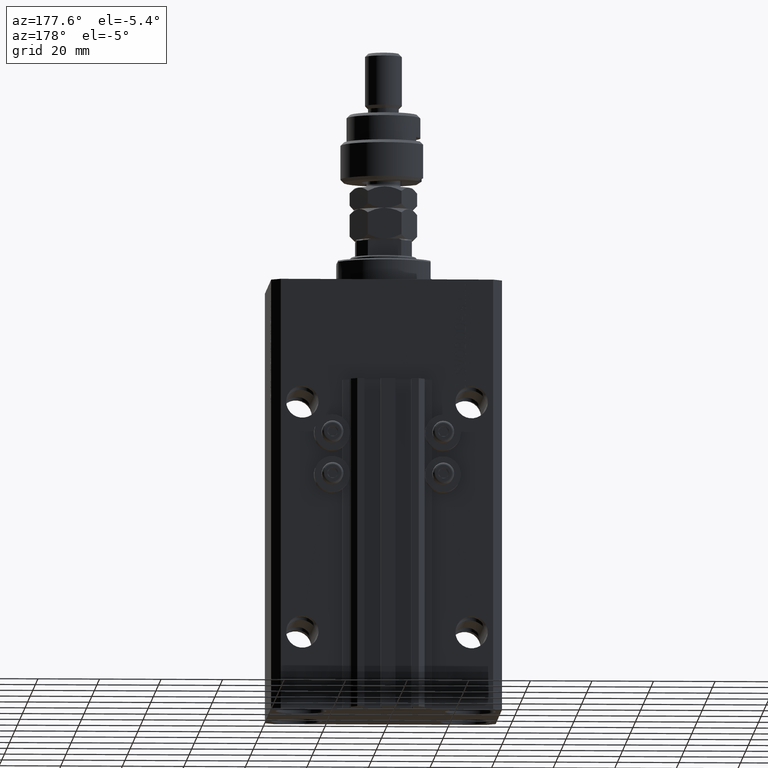
[diagram: clean part render]
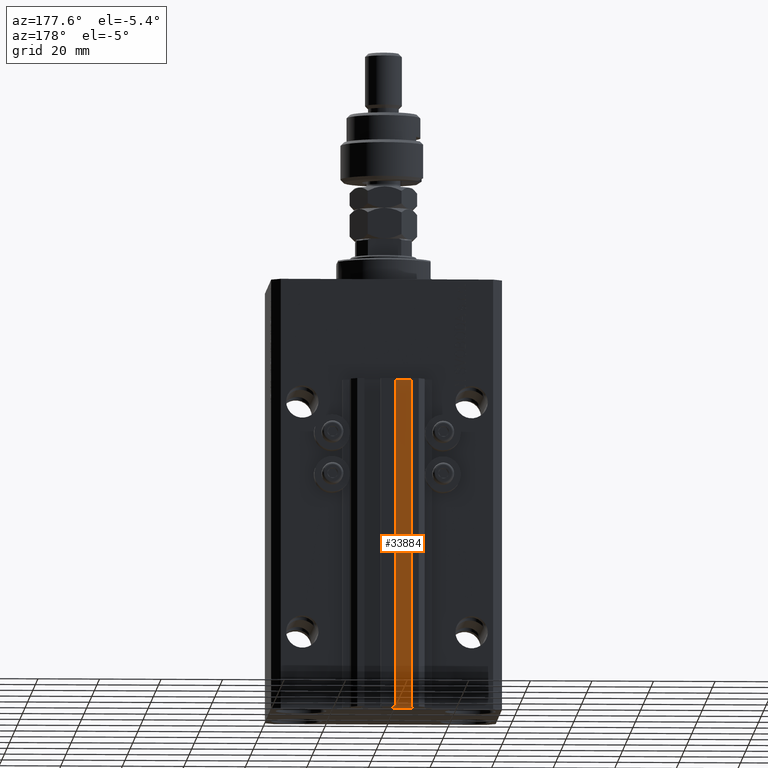
[diagram: same view with one face highlighted and labeled with its STEP entity id]
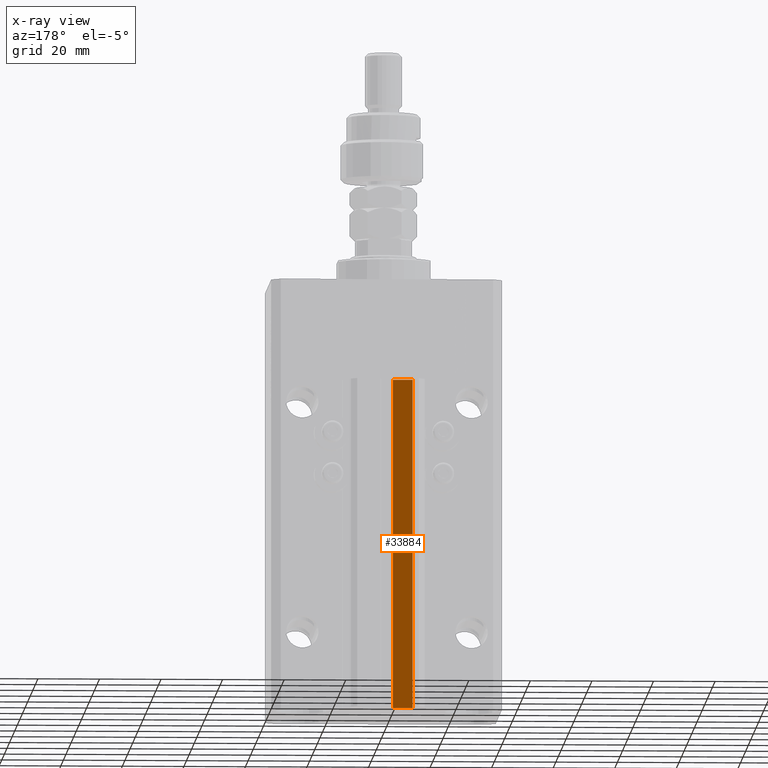
[diagram: x-ray of the same camera — body ghosted, the highlighted face saturated]
A machine part, auxiliary view. The second image highlights one B-rep face of the part: STEP entity #33884.
The next image is the same camera in x-ray: the body ghosted, the highlighted face saturated — about 0% of this face is hidden behind the body in this view.
In plain terms, the highlighted planar face has unit normal (0, 1, 0).
Its self-contained STEP definition (entity closure, byte-faithful):
#79 = CARTESIAN_POINT ( 'NONE',  ( -1.800000000000000933, 29.50000000000000355, -33.00000000000000000 ) ) ;
#200 = CARTESIAN_POINT ( 'NONE',  ( -1.800000000000000933, 29.50000000000000355, -140.0000000000000000 ) ) ;
#4311 = ORIENTED_EDGE ( 'NONE', *, *, #42371, .T. ) ;
#6063 = EDGE_LOOP ( 'NONE', ( #36895, #17052, #6708, #4311 ) ) ;
#6445 = VECTOR ( 'NONE', #31280, 1000.000000000000000 ) ;
#6708 = ORIENTED_EDGE ( 'NONE', *, *, #47461, .T. ) ;
#6722 = DIRECTION ( 'NONE',  ( -1.000000000000000000, 0.000000000000000000, 0.000000000000000000 ) ) ;
#7895 = CARTESIAN_POINT ( 'NONE',  ( -8.199999999999997513, 29.50000000000000355, -33.00000000000000000 ) ) ;
#8073 = DIRECTION ( 'NONE',  ( 0.000000000000000000, 1.000000000000000000, -0.000000000000000000 ) ) ;
#10753 = CARTESIAN_POINT ( 'NONE',  ( -8.199999999999997513, 29.50000000000000355, -140.0000000000000000 ) ) ;
#17052 = ORIENTED_EDGE ( 'NONE', *, *, #47148, .F. ) ;
#18513 = EDGE_CURVE ( 'NONE', #32932, #46547, #19613, .T. ) ;
#18613 = LINE ( 'NONE', #10753, #25120 ) ;
#19613 = LINE ( 'NONE', #79, #6445 ) ;
#20191 = VECTOR ( 'NONE', #6722, 1000.000000000000000 ) ;
#22567 = FACE_OUTER_BOUND ( 'NONE', #6063, .T. ) ;
#23007 = LINE ( 'NONE', #42524, #46392 ) ;
#25120 = VECTOR ( 'NONE', #45230, 1000.000000000000000 ) ;
#26465 = VERTEX_POINT ( 'NONE', #34961 ) ;
#29820 = LINE ( 'NONE', #37918, #20191 ) ;
#30918 = DIRECTION ( 'NONE',  ( 0.000000000000000000, 0.000000000000000000, 1.000000000000000000 ) ) ;
#31158 = PLANE ( 'NONE',  #36225 ) ;
#31280 = DIRECTION ( 'NONE',  ( -1.000000000000000000, 0.000000000000000000, 0.000000000000000000 ) ) ;
#32932 = VERTEX_POINT ( 'NONE', #38503 ) ;
#33884 = ADVANCED_FACE ( 'NONE', ( #22567 ), #31158, .T. ) ;
#34961 = CARTESIAN_POINT ( 'NONE',  ( -8.199999999999997513, 29.50000000000000355, -140.0000000000000000 ) ) ;
#36225 = AXIS2_PLACEMENT_3D ( 'NONE', #200, #8073, #30918 ) ;
#36895 = ORIENTED_EDGE ( 'NONE', *, *, #18513, .F. ) ;
#37918 = CARTESIAN_POINT ( 'NONE',  ( -1.800000000000000933, 29.50000000000000355, -140.0000000000000000 ) ) ;
#38503 = CARTESIAN_POINT ( 'NONE',  ( -1.800000000000000933, 29.50000000000000355, -33.00000000000000000 ) ) ;
#39403 = CARTESIAN_POINT ( 'NONE',  ( -1.800000000000000933, 29.50000000000000355, -140.0000000000000000 ) ) ;
#42371 = EDGE_CURVE ( 'NONE', #26465, #46547, #18613, .T. ) ;
#42524 = CARTESIAN_POINT ( 'NONE',  ( -1.800000000000000933, 29.50000000000000355, -140.0000000000000000 ) ) ;
#45230 = DIRECTION ( 'NONE',  ( 0.000000000000000000, 0.000000000000000000, 1.000000000000000000 ) ) ;
#46075 = DIRECTION ( 'NONE',  ( 0.000000000000000000, 0.000000000000000000, 1.000000000000000000 ) ) ;
#46392 = VECTOR ( 'NONE', #46075, 1000.000000000000000 ) ;
#46547 = VERTEX_POINT ( 'NONE', #7895 ) ;
#47148 = EDGE_CURVE ( 'NONE', #49964, #32932, #23007, .T. ) ;
#47461 = EDGE_CURVE ( 'NONE', #49964, #26465, #29820, .T. ) ;
#49964 = VERTEX_POINT ( 'NONE', #39403 ) ;